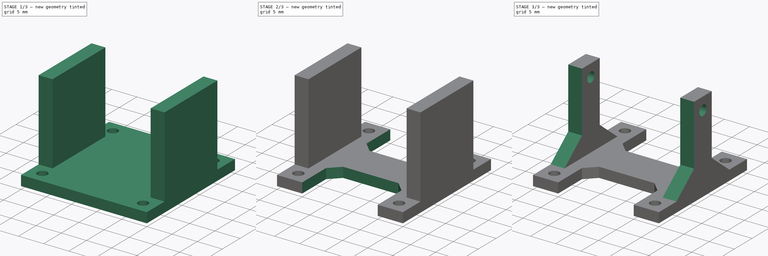
[diagram: build sequence overview — one tinted view per stage of 3, left to right]
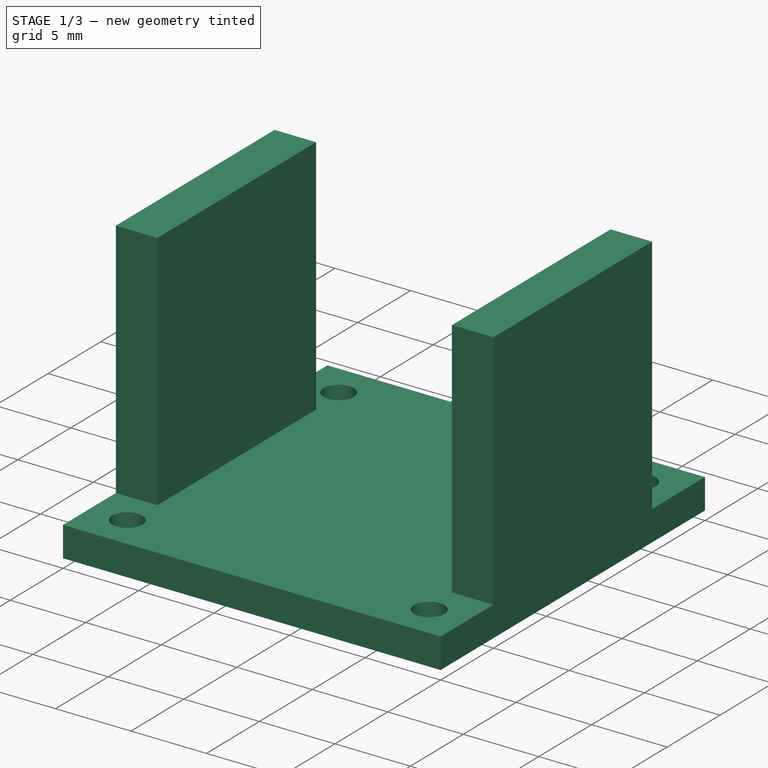
[diagram: stage 1 of 3 — iso view after this stage's code; geometry added in this stage tinted green]
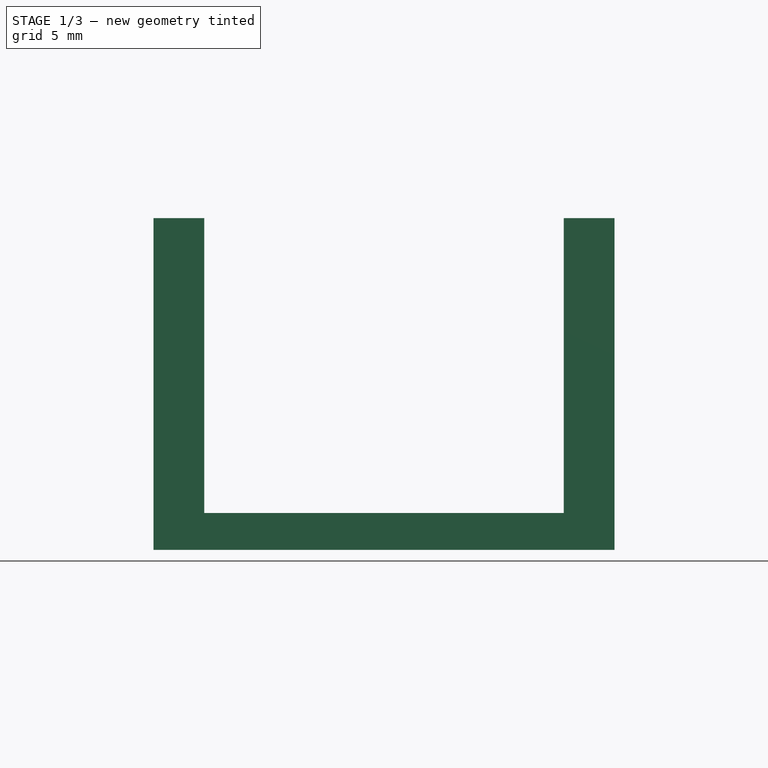
[diagram: stage 1 of 3 — front view after this stage's code; geometry added in this stage tinted green]
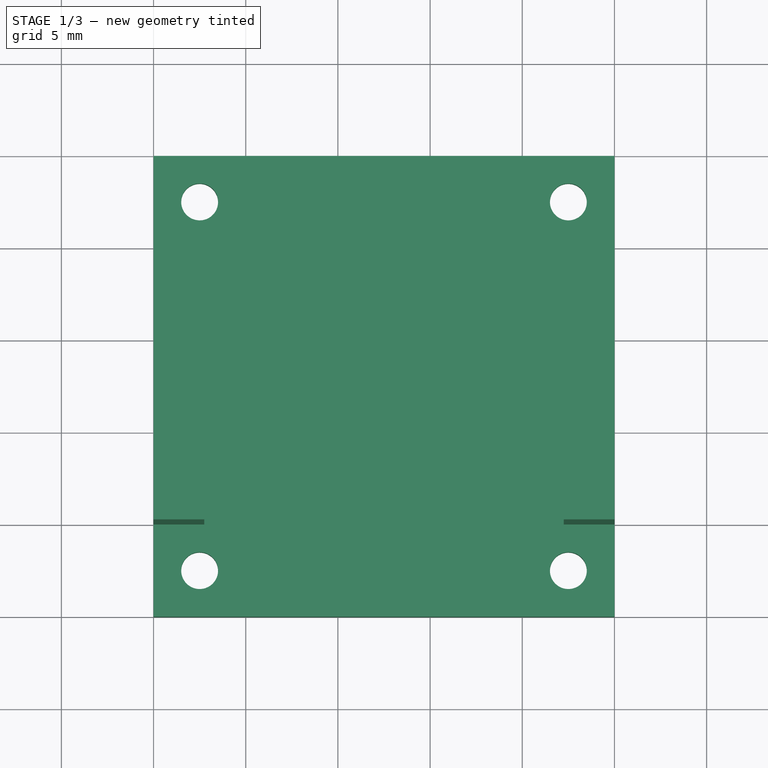
[diagram: stage 1 of 3 — top view after this stage's code; geometry added in this stage tinted green]
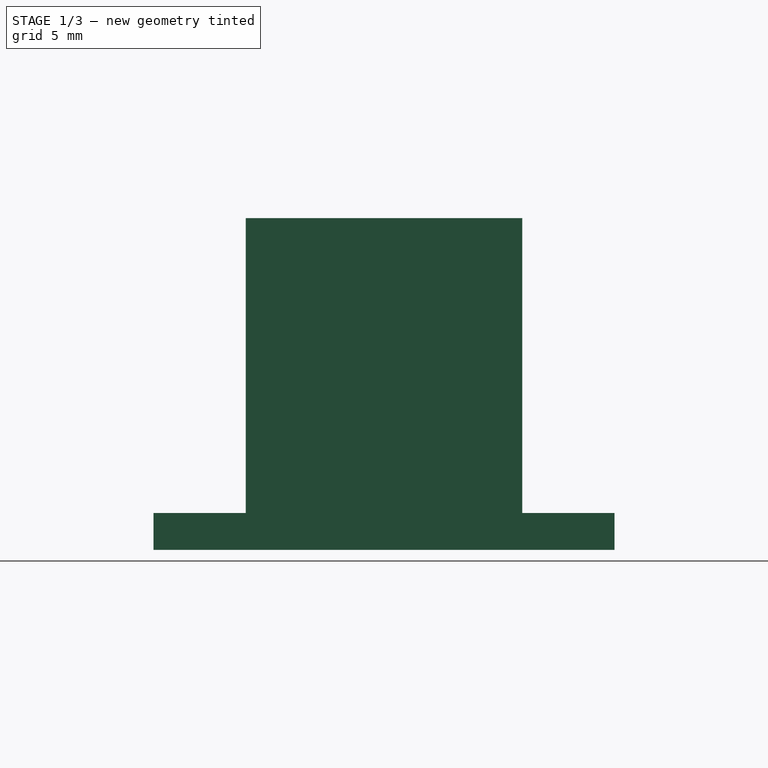
[diagram: stage 1 of 3 — right view after this stage's code; geometry added in this stage tinted green]
FCSTD DOCUMENT  (FreeCAD 0.18R16146 (Git))
Label: stack_camera_mount
License: All rights reserved
LicenseURL: http://en.wikipedia.org/wiki/All_rights_reserved
objects: Sketcher::SketchObject×5, PartDesign::Pocket×3, PartDesign::Pad×2, PartDesign::Chamfer×1, PartDesign::Body×1
note: 17 computed .brp shape members not serialized (recipe doc carries the construction recipe); baked Part::Feature solids carry a one-line shape summary decoded from their .brp

FEATURE [Sketcher::SketchObject] Sketch
  MapMode = 5
  Support = -> [XY_Plane]
  sketch-geometry (13):
    g0: LineSegment StartX=0 StartY=0 StartZ=0 EndX=25 EndY=0 EndZ=0
    g1: LineSegment StartX=25 StartY=0 StartZ=0 EndX=25 EndY=25 EndZ=0
    g2: LineSegment StartX=25 StartY=25 StartZ=0 EndX=0 EndY=25 EndZ=0
    g3: LineSegment StartX=0 StartY=25 StartZ=0 EndX=0 EndY=0 EndZ=0
    g4: LineSegment [constr] StartX=2.5 StartY=22.5 StartZ=0 EndX=22.5 EndY=22.5 EndZ=0
    g5: LineSegment [constr] StartX=22.5 StartY=22.5 StartZ=0 EndX=22.5 EndY=2.5 EndZ=0
    g6: LineSegment [constr] StartX=22.5 StartY=2.5 StartZ=0 EndX=2.5 EndY=2.5 EndZ=0
    g7: LineSegment [constr] StartX=2.5 StartY=2.5 StartZ=0 EndX=2.5 EndY=22.5 EndZ=0
    g8: Circle CenterX=2.5 CenterY=22.5 CenterZ=0 NormalX=0 NormalY=0 NormalZ=1 AngleXU=0 Radius=1
    g9: Circle CenterX=22.5 CenterY=22.5 CenterZ=0 NormalX=0 NormalY=0 NormalZ=1 AngleXU=0 Radius=1
    g10: Circle CenterX=22.5 CenterY=2.5 CenterZ=0 NormalX=0 NormalY=0 NormalZ=1 AngleXU=0 Radius=1
    g11: Circle CenterX=2.5 CenterY=2.5 CenterZ=0 NormalX=0 NormalY=0 NormalZ=1 AngleXU=0 Radius=1
    g12: GeomPoint X=12.5 Y=12.5 Z=0
  constraints (31):
    c: Coincident(g0,g1)
    c: Coincident(g1,g2)
    c: Coincident(g2,g3)
    c: Coincident(g3,g0)
    c: Horizontal(g0)
    c: Horizontal(g2)
    c: Vertical(g1)
    c: Vertical(g3)
    c: Coincident(g0,g-1)
    c: Coincident(g4,g5)
    c: Coincident(g5,g6)
    c: Coincident(g6,g7)
    c: Coincident(g7,g4)
    c: Horizontal(g4)
    c: Horizontal(g6)
    c: Vertical(g5)
    c: Vertical(g7)
    c: Coincident(g8,g4)
    c: Coincident(g9,g4)
    c: Coincident(g10,g5)
    c: Coincident(g11,g6)
    c: Equal(g11,g8)
    c: Equal(g8,g9)
    c: Equal(g9,g10)
    c: Diameter(g9) = 2
    c: Equal(g4,g5)
    c: DistanceX(g6,g6) = 20
    c: Symmetric(g11,g9,g12)
    c: Symmetric(g0,g1,g12)
    c: DistanceY(g1,g1) = 25
    c: DistanceX(g0,g0) = 25
FEATURE [PartDesign::Pad] Pad
  Length = 2
  Length2 = 100
  Profile = -> Sketch
  Type = 0
FEATURE [Sketcher::SketchObject] Sketch001
  ExternalGeometry = -> [Pad]
  MapMode = 5
  Placement = pos=(0,0,2) rot=(0,0,1;0rad)
  Support = -> [Pad]
  sketch-geometry (12):
    g0: LineSegment StartX=0 StartY=20 StartZ=0 EndX=2.75 EndY=20 EndZ=0
    g1: LineSegment StartX=2.75 StartY=20 StartZ=0 EndX=2.75 EndY=5 EndZ=0
    g2: LineSegment StartX=2.75 StartY=5 StartZ=0 EndX=0 EndY=5 EndZ=0
    g3: LineSegment StartX=0 StartY=5 StartZ=0 EndX=0 EndY=20 EndZ=0
    g4: LineSegment StartX=25 StartY=20 StartZ=0 EndX=22.25 EndY=20 EndZ=0
    g5: LineSegment StartX=22.25 StartY=20 StartZ=0 EndX=22.25 EndY=5 EndZ=0
    g6: LineSegment StartX=22.25 StartY=5 StartZ=0 EndX=25 EndY=5 EndZ=0
    g7: LineSegment StartX=25 StartY=5 StartZ=0 EndX=25 EndY=20 EndZ=0
    g8: LineSegment [constr] StartX=2.75 StartY=20 StartZ=0 EndX=22.25 EndY=20 EndZ=0
    g9: LineSegment [constr] StartX=2.75 StartY=5 StartZ=0 EndX=22.25 EndY=5 EndZ=0
    g10: LineSegment [constr] StartX=25 StartY=20 StartZ=0 EndX=25 EndY=25 EndZ=0
    g11: LineSegment [constr] StartX=25 StartY=5 StartZ=0 EndX=25 EndY=0 EndZ=0
  constraints (32):
    c: Coincident(g0,g1)
    c: Coincident(g1,g2)
    c: Coincident(g2,g3)
    c: Coincident(g3,g0)
    c: Horizontal(g0)
    c: Horizontal(g2)
    c: Vertical(g1)
    c: Vertical(g3)
    c: PointOnObject(g0,g-2)
    c: Coincident(g4,g5)
    c: Coincident(g5,g6)
    c: Coincident(g6,g7)
    c: Coincident(g7,g4)
    c: Horizontal(g4)
    c: Horizontal(g6)
    c: Vertical(g5)
    c: Vertical(g7)
    c: PointOnObject(g4,g-3)
    c: Coincident(g8,g0)
    c: Coincident(g8,g4)
    c: Horizontal(g8)
    c: Coincident(g9,g1)
    c: Coincident(g9,g5)
    c: Horizontal(g9)
    c: Equal(g0,g4)
    c: DistanceX(g8,g8) = 19.5
    c: Coincident(g10,g4)
    c: Coincident(g10,g-3)
    c: Coincident(g11,g6)
    c: Coincident(g11,g-3)
    c: Equal(g10,g11)
    c: DistanceY(g7,g7) = 15
FEATURE [PartDesign::Pad] Pad001
  BaseFeature = -> Pad
  Length = 16
  Length2 = 100
  Profile = -> Sketch001
  Type = 0
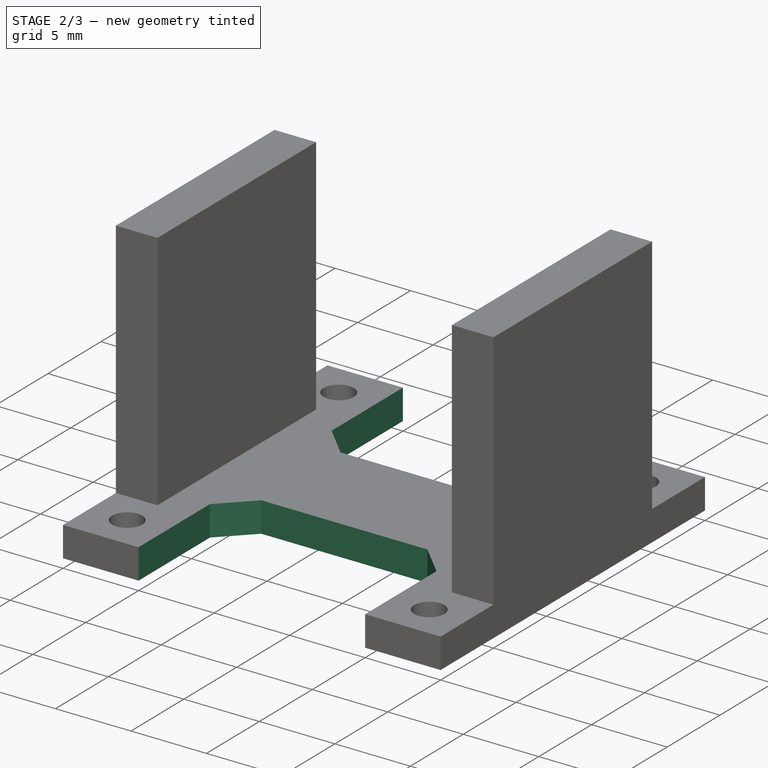
[diagram: stage 2 of 3 — iso view after this stage's code; geometry added in this stage tinted green]
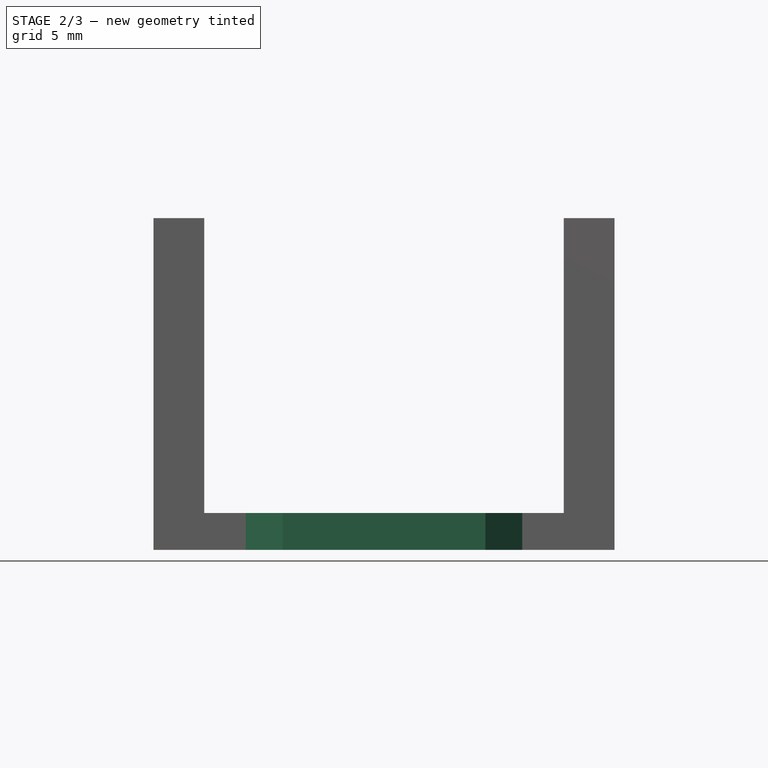
[diagram: stage 2 of 3 — front view after this stage's code; geometry added in this stage tinted green]
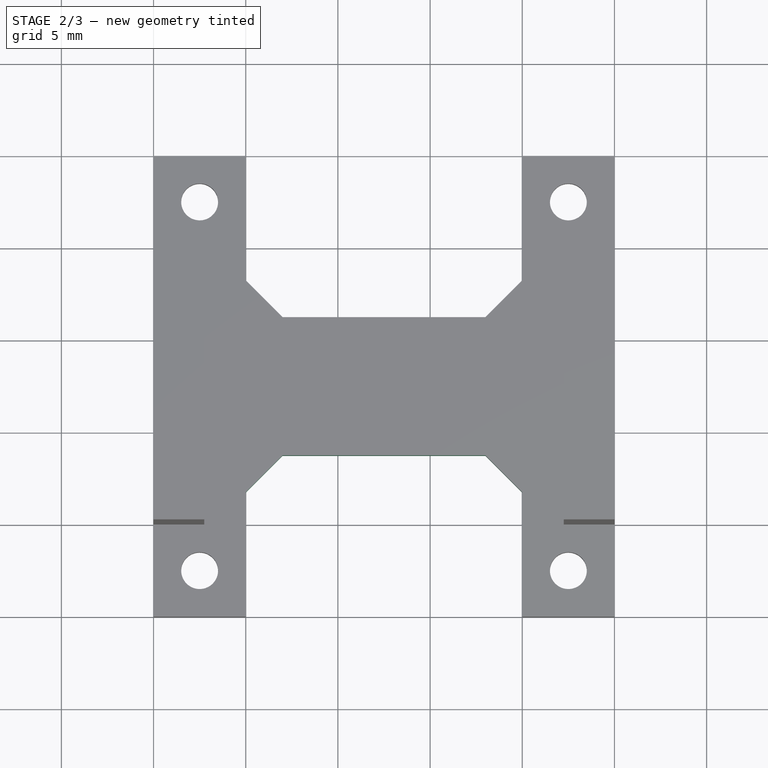
[diagram: stage 2 of 3 — top view after this stage's code; geometry added in this stage tinted green]
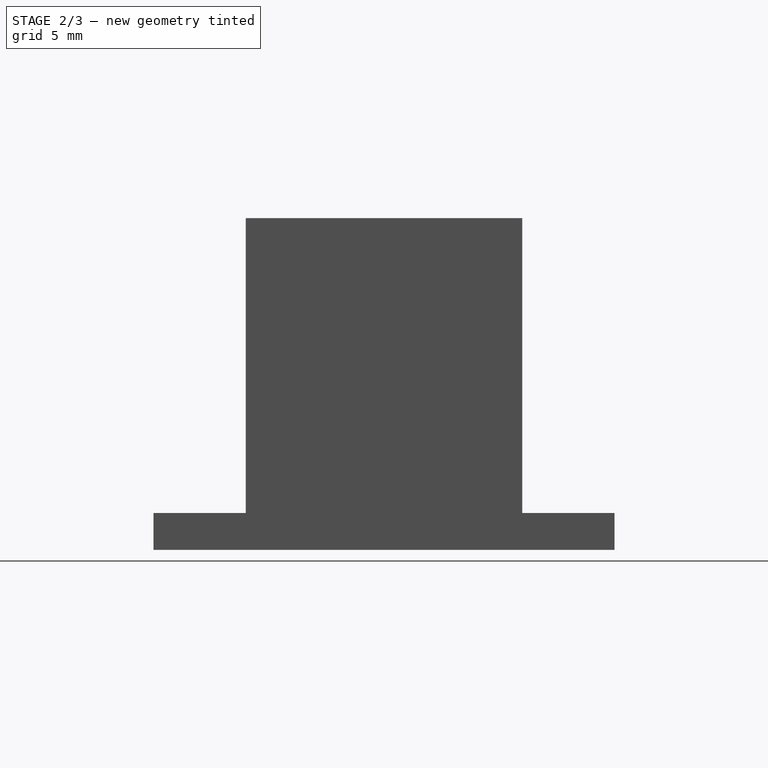
[diagram: stage 2 of 3 — right view after this stage's code; geometry added in this stage tinted green]
FEATURE [Sketcher::SketchObject] Sketch002
  ExternalGeometry = -> [Pad001]
  MapMode = 5
  Placement = pos=(0,0,2) rot=(0,0,1;0rad)
  Support = -> [Pad001]
  sketch-geometry (12):
    g0: LineSegment StartX=5 StartY=25 StartZ=0 EndX=20 EndY=25 EndZ=0
    g1: LineSegment StartX=20 StartY=25 StartZ=0 EndX=20 EndY=16.25 EndZ=0
    g2: LineSegment StartX=20 StartY=16.25 StartZ=0 EndX=5 EndY=16.25 EndZ=0
    g3: LineSegment StartX=5 StartY=16.25 StartZ=0 EndX=5 EndY=25 EndZ=0
    g4: LineSegment StartX=5 StartY=0 StartZ=0 EndX=20 EndY=0 EndZ=0
    g5: LineSegment StartX=20 StartY=0 StartZ=0 EndX=20 EndY=8.75 EndZ=0
    g6: LineSegment StartX=20 StartY=8.75 StartZ=0 EndX=5 EndY=8.75 EndZ=0
    g7: LineSegment StartX=5 StartY=8.75 StartZ=0 EndX=5 EndY=0 EndZ=0
    g8: LineSegment [constr] StartX=0 StartY=25 StartZ=0 EndX=5 EndY=25 EndZ=0
    g9: LineSegment [constr] StartX=20 StartY=25 StartZ=0 EndX=25 EndY=25 EndZ=0
    g10: LineSegment [constr] StartX=0 StartY=0 StartZ=0 EndX=5 EndY=0 EndZ=0
    g11: LineSegment [constr] StartX=20 StartY=0 StartZ=0 EndX=25 EndY=0 EndZ=0
  constraints (32):
    c: Coincident(g0,g1)
    c: Coincident(g1,g2)
    c: Coincident(g2,g3)
    c: Coincident(g3,g0)
    c: Horizontal(g0)
    c: Horizontal(g2)
    c: Vertical(g1)
    c: Vertical(g3)
    c: PointOnObject(g0,g-3)
    c: Coincident(g4,g5)
    c: Coincident(g5,g6)
    c: Coincident(g6,g7)
    c: Coincident(g7,g4)
    c: Horizontal(g4)
    c: Horizontal(g6)
    c: Vertical(g5)
    c: PointOnObject(g4,g-1)
    c: Equal(g6,g2)
    c: Equal(g1,g5)
    c: Coincident(g8,g-3)
    c: Coincident(g8,g0)
    c: Coincident(g9,g0)
    c: Coincident(g9,g-3)
    c: Coincident(g10,g-1)
    c: Coincident(g10,g4)
    c: Coincident(g11,g4)
    c: Coincident(g11,g-4)
    c: Equal(g8,g9)
    c: Equal(g9,g11)
    c: Equal(g11,g10)
    c: DistanceY(g5,g1) = 7.5
    c: DistanceX(g0,g0) = 15
FEATURE [PartDesign::Pocket] Pocket
  BaseFeature = -> Pad001
  Length = 100
  Length2 = 100
  Profile = -> Sketch002
  Type = 0
FEATURE [PartDesign::Chamfer] Chamfer
  Base = -> Pocket [Edge48,Edge47,Edge21,Edge54]
  BaseFeature = -> Pocket
  Size = 2
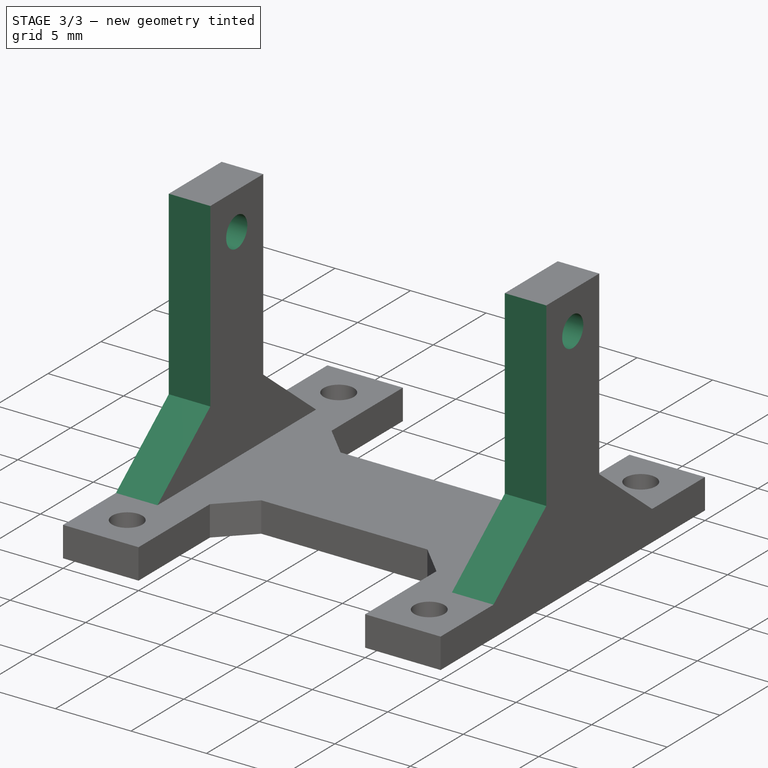
[diagram: stage 3 of 3 — iso view after this stage's code; geometry added in this stage tinted green]
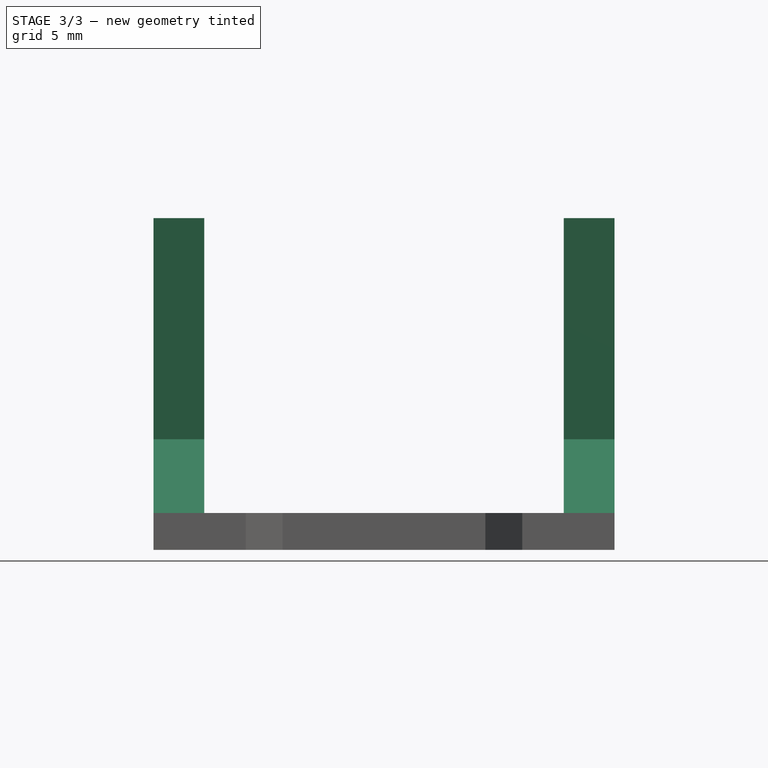
[diagram: stage 3 of 3 — front view after this stage's code; geometry added in this stage tinted green]
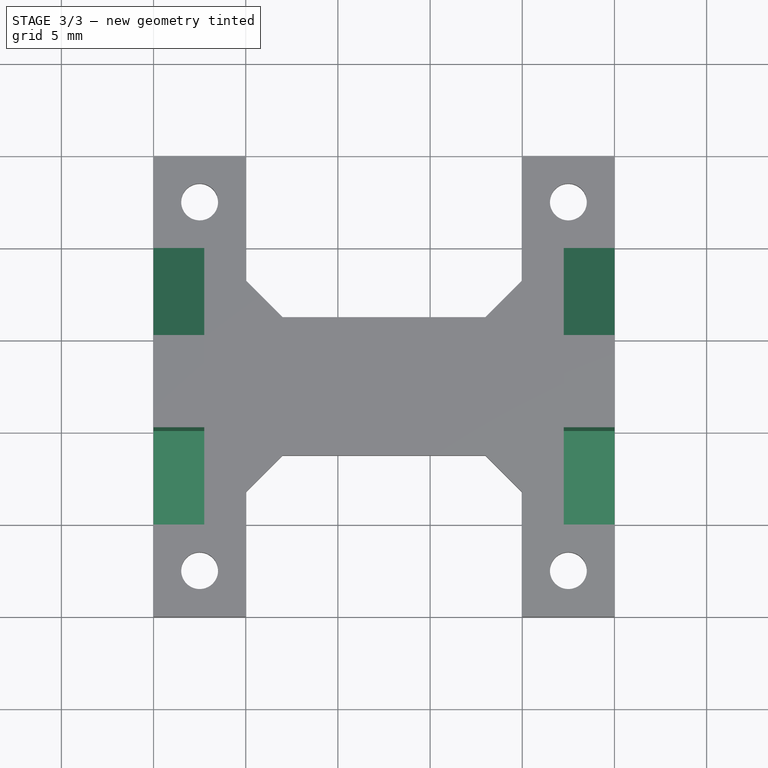
[diagram: stage 3 of 3 — top view after this stage's code; geometry added in this stage tinted green]
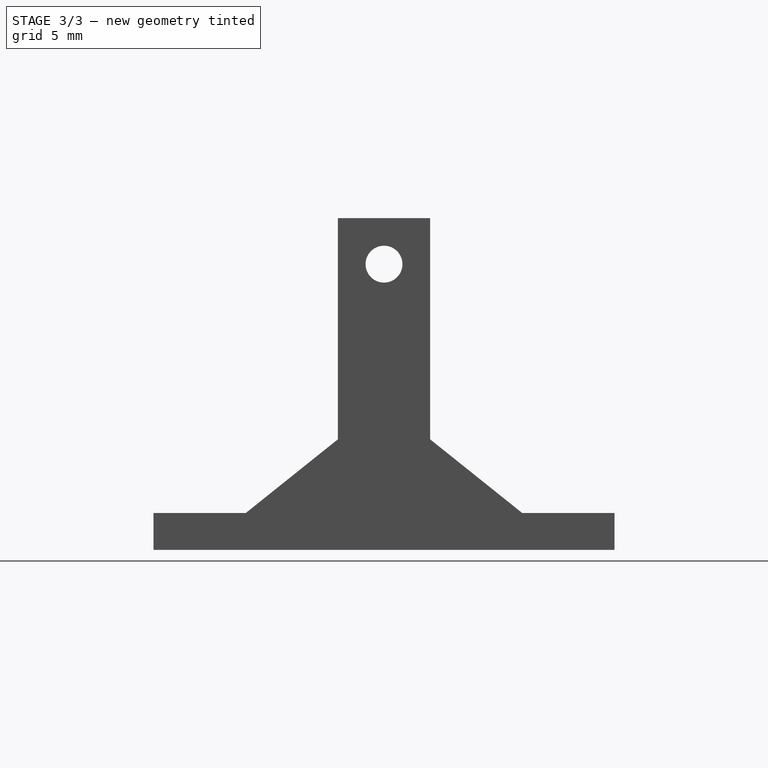
[diagram: stage 3 of 3 — right view after this stage's code; geometry added in this stage tinted green]
FEATURE [Sketcher::SketchObject] Sketch003
  ExternalGeometry = -> [Chamfer]
  MapMode = 5
  Placement = pos=(25,0,0) rot=(0.57735,0.57735,0.57735;2.0944rad)
  Support = -> [Chamfer]
  sketch-geometry (5):
    g0: Circle CenterX=12.5 CenterY=15.5 CenterZ=0 NormalX=0 NormalY=0 NormalZ=1 AngleXU=0 Radius=1
    g1: LineSegment [constr] StartX=5 StartY=18 StartZ=0 EndX=20 EndY=18 EndZ=0
    g2: LineSegment [constr] StartX=20 StartY=18 StartZ=0 EndX=20 EndY=13 EndZ=0
    g3: LineSegment [constr] StartX=20 StartY=13 StartZ=0 EndX=5 EndY=13 EndZ=0
    g4: LineSegment [constr] StartX=5 StartY=13 StartZ=0 EndX=5 EndY=18 EndZ=0
  constraints (13):
    c: Diameter(g0) = 2
    c: Coincident(g1,g2)
    c: Coincident(g2,g3)
    c: Coincident(g3,g4)
    c: Coincident(g4,g1)
    c: Horizontal(g1)
    c: Horizontal(g3)
    c: Vertical(g2)
    c: Vertical(g4)
    c: Coincident(g1,g-6)
    c: PointOnObject(g2,g-4)
    c: Symmetric(g3,g1,g0)
    c: DistanceY(g0,g1) = 2.5
FEATURE [PartDesign::Pocket] Pocket001
  BaseFeature = -> Chamfer
  Length = 100
  Length2 = 100
  Profile = -> Sketch003
  Type = 0
FEATURE [Sketcher::SketchObject] Sketch004
  ExternalGeometry = -> [Pocket001]
  MapMode = 5
  Placement = pos=(25,0,0) rot=(0.57735,0.57735,0.57735;2.0944rad)
  Support = -> [Pocket001]
  sketch-geometry (9):
    g0: LineSegment StartX=10 StartY=18 StartZ=0 EndX=10 EndY=6 EndZ=0
    g1: LineSegment StartX=10 StartY=6 StartZ=0 EndX=5 EndY=2 EndZ=0
    g2: LineSegment StartX=5 StartY=2 StartZ=0 EndX=5 EndY=18 EndZ=0
    g3: LineSegment StartX=5 StartY=18 StartZ=0 EndX=10 EndY=18 EndZ=0
    g4: LineSegment StartX=15 StartY=18 StartZ=0 EndX=15 EndY=6 EndZ=0
    g5: LineSegment StartX=15 StartY=6 StartZ=0 EndX=20 EndY=2 EndZ=0
    g6: LineSegment StartX=20 StartY=2 StartZ=0 EndX=20 EndY=18 EndZ=0
    g7: LineSegment StartX=20 StartY=18 StartZ=0 EndX=15 EndY=18 EndZ=0
    g8: LineSegment [constr] StartX=10 StartY=18 StartZ=0 EndX=15 EndY=18 EndZ=0
  constraints (22):
    c: PointOnObject(g0,g-3)
    c: Vertical(g0)
    c: Coincident(g1,g0)
    c: Coincident(g1,g-4)
    c: Coincident(g2,g1)
    c: Coincident(g2,g-4)
    c: Coincident(g3,g2)
    c: Coincident(g3,g0)
    c: PointOnObject(g4,g-3)
    c: Vertical(g4)
    c: Coincident(g5,g4)
    c: Coincident(g5,g-5)
    c: Coincident(g6,g5)
    c: Coincident(g6,g-5)
    c: Coincident(g7,g6)
    c: Coincident(g7,g4)
    c: Equal(g0,g4)
    c: Equal(g7,g3)
    c: Coincident(g8,g0)
    c: Coincident(g8,g4)
    c: DistanceX(g8,g8) = 5
    c: DistanceY(g4,g4) = 12
FEATURE [PartDesign::Pocket] Pocket002
  BaseFeature = -> Pocket001
  Length = 100
  Length2 = 100
  Profile = -> Sketch004
  Type = 0
FEATURE [PartDesign::Body] Body
  Group = -> [Sketch,Pad,Sketch001,Pad001,Sketch002,Pocket,Chamfer,Sketch003,Pocket001,Sketch004,Pocket002]
  Origin = -> Origin
  Tip = -> Pocket002
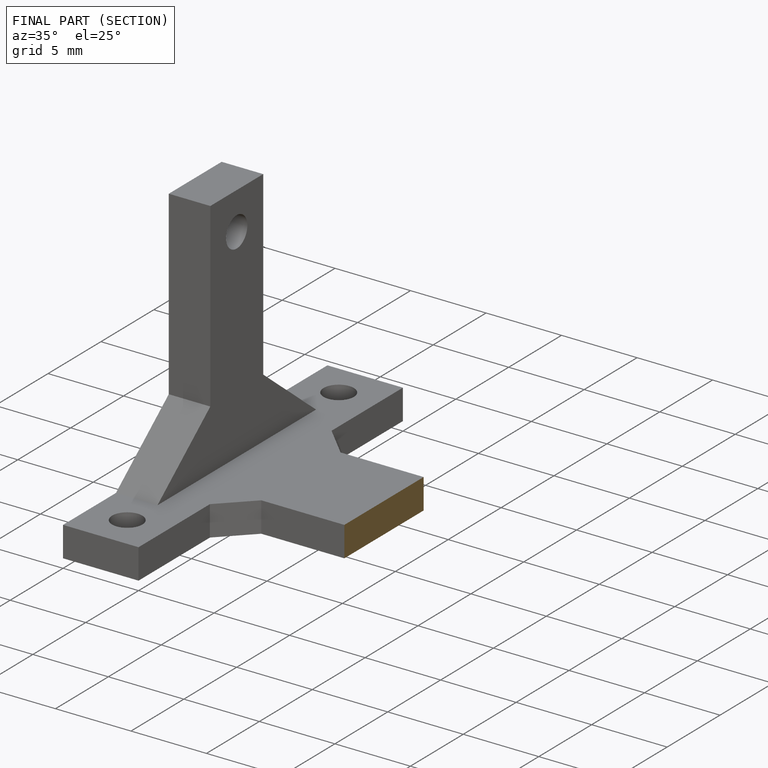
[diagram: finished part — half-section view (interior)]
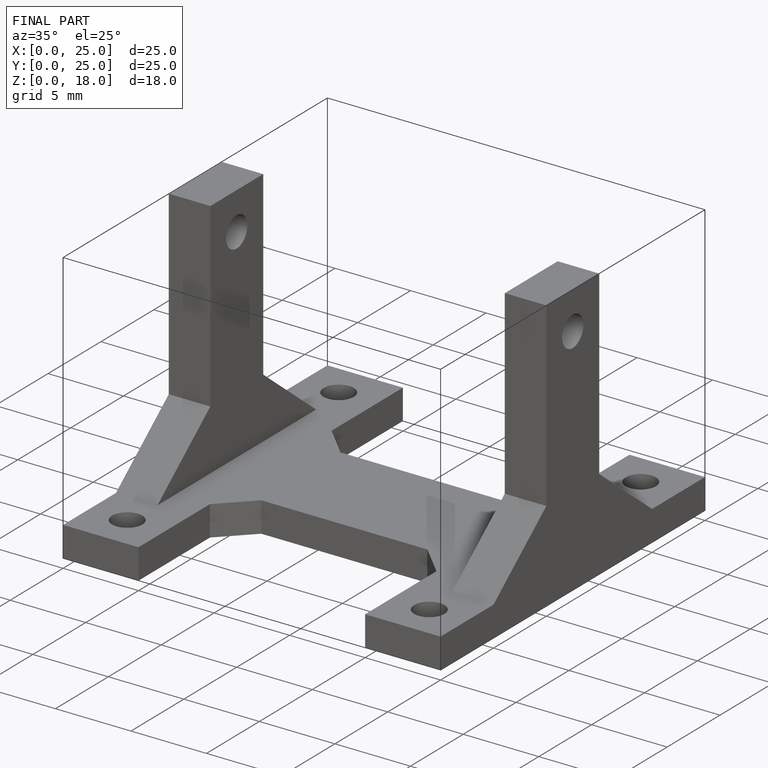
[diagram: finished part — iso view with bounding-box wireframe]
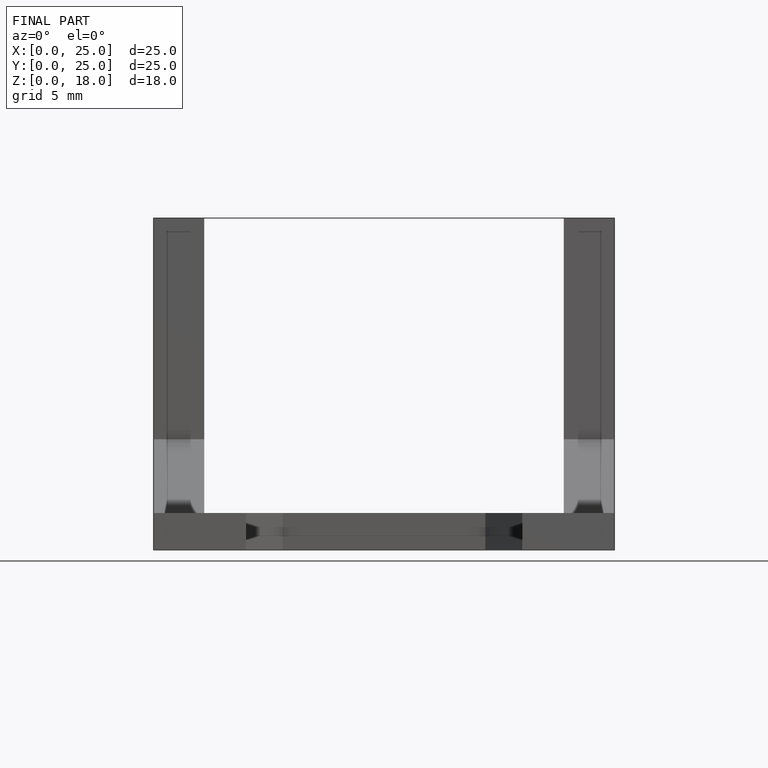
[diagram: finished part — front view with bounding-box wireframe]
